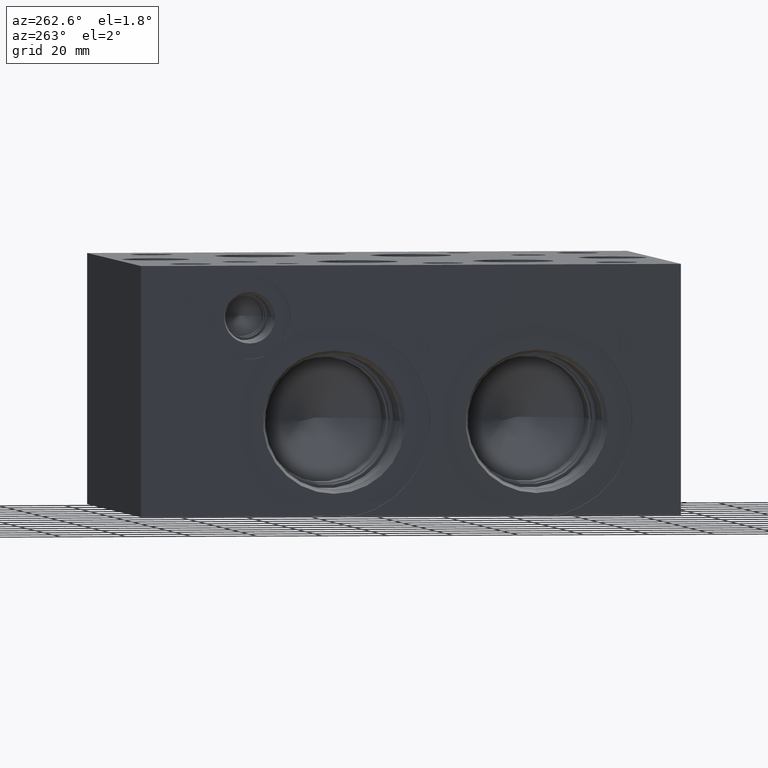
[diagram: clean part render]
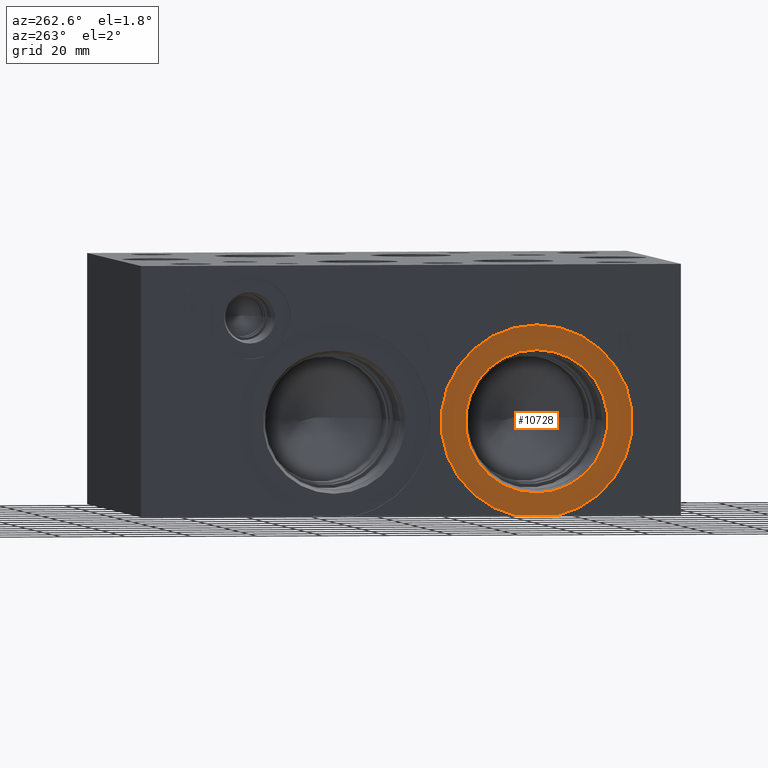
[diagram: same view with one face highlighted and labeled with its STEP entity id]
A machine part, auxiliary view. The second image highlights one B-rep face of the part: STEP entity #10728.
In plain terms, the highlighted planar face has unit normal (1, 0, 0).
Its self-contained STEP definition (entity closure, byte-faithful):
#170=CIRCLE('',#11196,29.2862);
#171=CIRCLE('',#11197,21.7551);
#172=CIRCLE('',#11198,21.7551);
#354=FACE_BOUND('',#1942,.T.);
#1340=FACE_OUTER_BOUND('',#1941,.T.);
#1941=EDGE_LOOP('',(#9113,#9114));
#1942=EDGE_LOOP('',(#9115,#9116));
#2946=LINE('',#18225,#3925);
#3925=VECTOR('',#12960,10.);
#4851=VERTEX_POINT('',#18222);
#4852=VERTEX_POINT('',#18224);
#4885=VERTEX_POINT('',#18325);
#4886=VERTEX_POINT('',#18326);
#6287=EDGE_CURVE('',#4851,#4852,#2946,.T.);
#6336=EDGE_CURVE('',#4852,#4851,#170,.T.);
#6337=EDGE_CURVE('',#4885,#4886,#171,.T.);
#6338=EDGE_CURVE('',#4886,#4885,#172,.T.);
#9113=ORIENTED_EDGE('',*,*,#6287,.F.);
#9114=ORIENTED_EDGE('',*,*,#6336,.F.);
#9115=ORIENTED_EDGE('',*,*,#6337,.T.);
#9116=ORIENTED_EDGE('',*,*,#6338,.T.);
#9819=PLANE('',#11195);
#10728=ADVANCED_FACE('',(#1340,#354),#9819,.F.);
#11195=AXIS2_PLACEMENT_3D('',#18323,#13070,#13071);
#11196=AXIS2_PLACEMENT_3D('',#18324,#13072,#13073);
#11197=AXIS2_PLACEMENT_3D('',#18327,#13074,#13075);
#11198=AXIS2_PLACEMENT_3D('',#18328,#13076,#13077);
#12960=DIRECTION('',(0.,1.,0.));
#13070=DIRECTION('center_axis',(1.,0.,0.));
#13071=DIRECTION('ref_axis',(0.,0.,-1.));
#13072=DIRECTION('center_axis',(1.,0.,0.));
#13073=DIRECTION('ref_axis',(0.,0.,-1.));
#13074=DIRECTION('center_axis',(1.,0.,0.));
#13075=DIRECTION('ref_axis',(0.,0.,-1.));
#13076=DIRECTION('center_axis',(1.,0.,0.));
#13077=DIRECTION('ref_axis',(0.,0.,-1.));
#18222=CARTESIAN_POINT('',(0.787399999999998,37.6287044092674,0.));
#18224=CARTESIAN_POINT('',(0.787399999999998,50.4584955907326,0.));
#18225=CARTESIAN_POINT('',(0.787399999999998,63.2968,0.));
#18323=CARTESIAN_POINT('Origin',(0.7874,44.0436,50.3301));
#18324=CARTESIAN_POINT('Origin',(0.7874,44.0436,28.575));
#18325=CARTESIAN_POINT('',(0.7874,44.0436,50.3301));
#18326=CARTESIAN_POINT('',(0.787400000000001,44.0436,6.81989999999999));
#18327=CARTESIAN_POINT('Origin',(0.7874,44.0436,28.575));
#18328=CARTESIAN_POINT('Origin',(0.7874,44.0436,28.575));